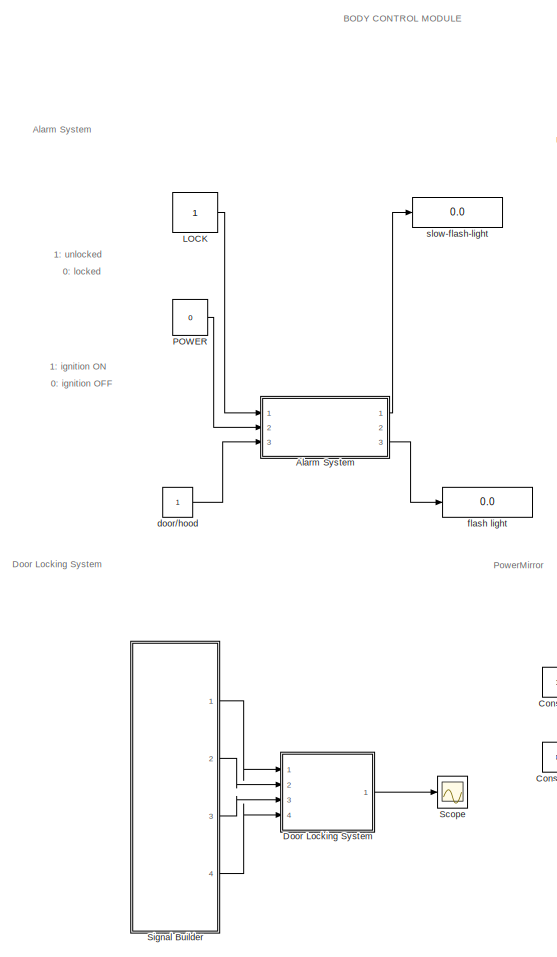
[diagram: root canvas - part 1/2, left side, full height]
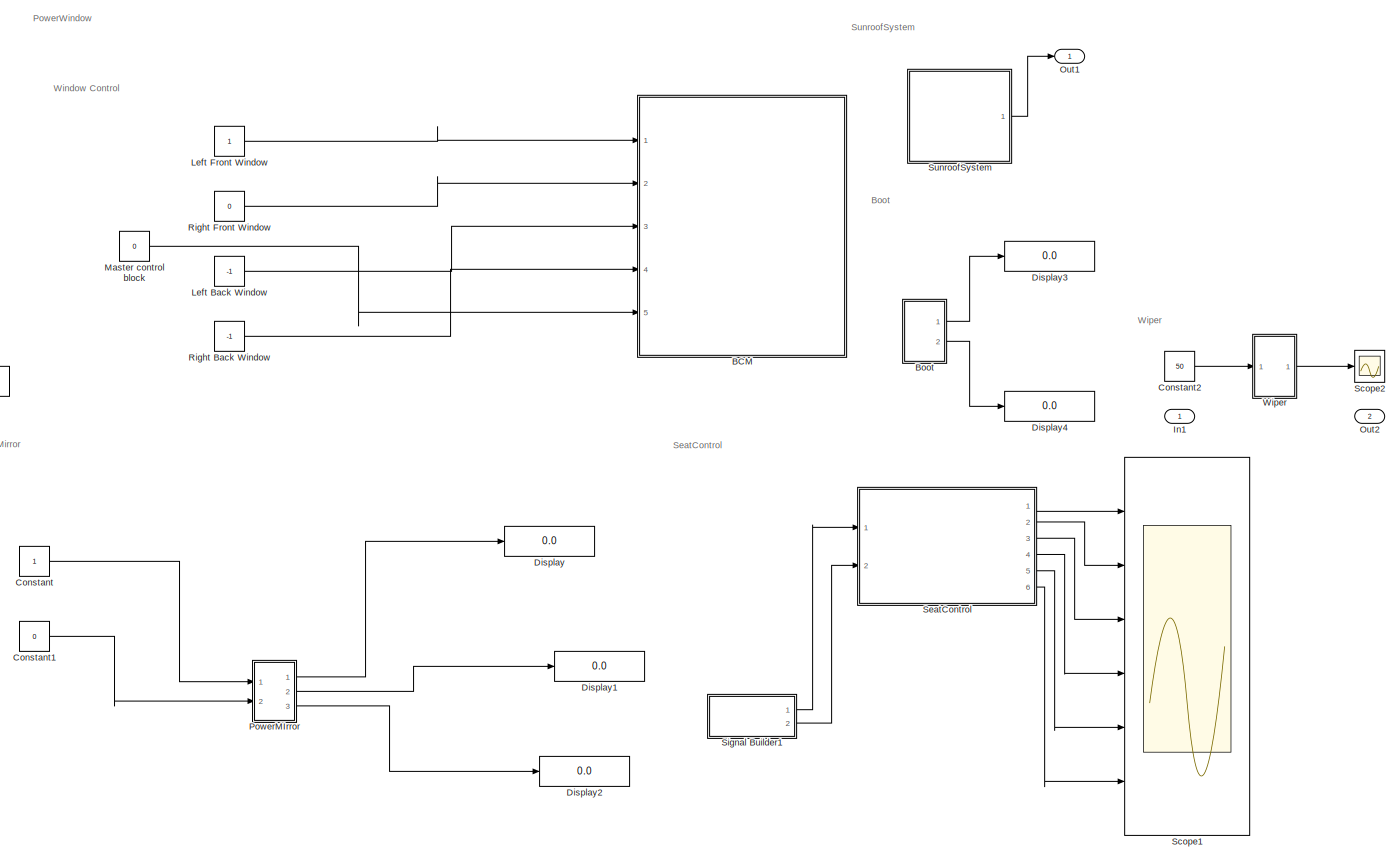
[diagram: root canvas - part 2/2, center side, full height]
MODEL slx_ff7060c86e51
KIND model
CONFIG AbsTol = auto
CONFIG EnableMultiTasking = off
CONFIG FixedStep = auto
CONFIG MaxStep = auto
CONFIG MinStep = auto
CONFIG RelTol = 1e-3
CONFIG SampleTimeConstraint = Unconstrained
CONFIG SolverName = VariableStepAuto
CONFIG StartTime = 0.0
CONFIG StopTime = 10.0
BLOCK [SubSystem]  Alarm System
  Ports = [3, 3]
  RequestExecContextInheritance = off
BLOCK [Outport]  Alarm System/Automatic locking
BLOCK [SubSystem]  Alarm System/Automatic locking system
  Ports = [2, 2]
  RequestExecContextInheritance = off
BLOCK [Logic]  Alarm System/Automatic locking system/AND
  AllPortsSameDT = off
  IconShape = distinctive
  OutDataTypeStr = boolean
  Ports = [2, 1]
BLOCK [Logic]  Alarm System/Automatic locking system/AND1
  AllPortsSameDT = off
  IconShape = distinctive
  OutDataTypeStr = boolean
  Ports = [2, 1]
BLOCK [Outport]  Alarm System/Automatic locking system/Automatic locking
BLOCK [Reference]  Alarm System/Automatic locking system/Compare To Constant  REF=simulink/Logic and Bit
Operations/Compare
To Constant
  Ports = [1, 1]
  SourceBlock = simulink/Logic and Bit\nOperations/Compare\nTo Constant
  SourceProductBaseCode = SL
  SourceType = Compare To Constant
BLOCK [Reference]  Alarm System/Automatic locking system/Counter  REF=dspswit3/Counter
  Ports = [1, 2]
  SourceBlock = dspswit3/Counter
  SourceProductBaseCode = DS
  SourceType = Counter
BLOCK [Inport]  Alarm System/Automatic locking system/In1
BLOCK [Inport]  Alarm System/Automatic locking system/In2
  Port = 2
BLOCK [Logic]  Alarm System/Automatic locking system/NOT
  AllPortsSameDT = off
  IconShape = distinctive
  Operator = NOT
  OutDataTypeStr = boolean
  Ports = [1, 1]
BLOCK [Logic]  Alarm System/Automatic locking system/NOT1
  AllPortsSameDT = off
  IconShape = distinctive
  Operator = NOT
  OutDataTypeStr = boolean
  Ports = [1, 1]
BLOCK [Outport]  Alarm System/Automatic locking system/Out2
  Port = 2
BLOCK [Scope]  Alarm System/Automatic locking system/Scope
  Floating = off
  NumInputPorts = 1
  Ports = [1]
  ScopeSpecificationString = Simulink.scopes.TimeScopeBlockCfg('CurrentConfiguration', extmgr.ConfigurationSet(extmgr.Configuration('Core','General UI',true),extmgr.Configuration('Core','Source UI',true),extmgr.Configuration('Sources','WiredSimulink',true),extmgr.Configuration('Visuals','Time Domain',true,'SerializedDisplays',{struct('MinYLimReal','28.75','MaxYLimReal','41.25','YLabelReal','','MinYLimMag','28.75','MaxYLimMag'...<+1311ch>
BLOCK [Inport]  Alarm System/In1
BLOCK [Inport]  Alarm System/In2
  Port = 2
BLOCK [Inport]  Alarm System/In3
  Port = 3
BLOCK [Outport]  Alarm System/Out2
  Port = 2
BLOCK [Outport]  Alarm System/Out3
  Port = 3
BLOCK [SubSystem]  Alarm System/Subsystem
  Ports = [2, 1]
  RequestExecContextInheritance = off
BLOCK [Logic]  Alarm System/Subsystem/AND
  AllPortsSameDT = off
  IconShape = distinctive
  OutDataTypeStr = boolean
  Ports = [2, 1]
BLOCK [Constant]  Alarm System/Subsystem/Constant1
BLOCK [Inport]  Alarm System/Subsystem/In1
BLOCK [Inport]  Alarm System/Subsystem/In2
  Port = 2
BLOCK [Logic]  Alarm System/Subsystem/NOT
  AllPortsSameDT = off
  IconShape = distinctive
  Operator = NOT
  OutDataTypeStr = boolean
  Ports = [1, 1]
BLOCK [Outport]  Alarm System/Subsystem/Out1
BLOCK [Switch]  Alarm System/Subsystem/Switch
  Criteria = u2 > Threshold
  InputSameDT = off
  SaturateOnIntegerOverflow = off
BLOCK [SubSystem] BCM
  Ports = [5]
  RequestExecContextInheritance = off
BLOCK [Inport] BCM/In1
BLOCK [Inport] BCM/In3
  Port = 2
BLOCK [Inport] BCM/In5
  Port = 3
BLOCK [Inport] BCM/In6
  Port = 5
BLOCK [Inport] BCM/In8
  Port = 4
BLOCK [SubSystem] BCM/Subsystem
  Ports = [4]
  RequestExecContextInheritance = off
BLOCK [Inport] BCM/Subsystem/In1
  Port = 2
BLOCK [Inport] BCM/Subsystem/In2
BLOCK [Inport] BCM/Subsystem/In3
  Port = 3
BLOCK [Inport] BCM/Subsystem/In4
  Port = 4
BLOCK [SubSystem] BCM/Subsystem/Left_B
  Ports = [1]
  RequestExecContextInheritance = off
BLOCK [Sum] BCM/Subsystem/Left_B/Add
  IconShape = rectangular
  Ports = [2, 1]
BLOCK [Constant] BCM/Subsystem/Left_B/Button not pressed
  Value = 0
BLOCK [Constant] BCM/Subsystem/Left_B/Constant1
BLOCK [Inport] BCM/Subsystem/Left_B/In1
BLOCK [Scope] BCM/Subsystem/Left_B/Motor_LF
  Floating = off
  NumInputPorts = 2
  Ports = [2]
  ScopeSpecificationString = Simulink.scopes.TimeScopeBlockCfg('CurrentConfiguration', extmgr.ConfigurationSet(extmgr.Configuration('Core','General UI',true),extmgr.Configuration('Core','Source UI',true),extmgr.Configuration('Sources','WiredSimulink',true,'DataLoggingVariableName','ScopeData3'),extmgr.Configuration('Visuals','Time Domain',true,'SerializedDisplays',{struct('MinYLimReal','-0.75','MaxYLimReal','6.75','YLabelReal...<+2109ch>
BLOCK [Reference] BCM/Subsystem/Left_B/RampSignal1  REF=simulink/Sources/Ramp
  Ports = [0, 1]
  SourceBlock = simulink/Sources/Ramp
  SourceProductBaseCode = SL
  SourceType = Ramp
BLOCK [Reference] BCM/Subsystem/Left_B/RampSignal2  REF=simulink/Sources/Ramp
  Ports = [0, 1]
  SourceBlock = simulink/Sources/Ramp
  SourceProductBaseCode = SL
  SourceType = Ramp
BLOCK [SubSystem] BCM/Subsystem/Left_B/Start
  ClipboardFcn = sigbuilder_block('clipboard');
  CloseFcn = sigbuilder_block('close');
  ContinueFcn = sigbuilder_block('continue');
  CopyFcn = sigbuilder_block('copy');
  DeleteFcn = sigbuilder_block('delete');
  LoadFcn = sigbuilder_block('load');
  MaskHideContents = on
  ModelCloseFcn = sigbuilder_block('modelClose');
  NameChangeFcn = sigbuilder_block('namechange');
  OpenFcn = sigbuilder_block('open',[437.6 199.2 550.4 400 ]);
  PauseFcn = sigbuilder_block('pause');
  Ports = [0, 1]
  PreSaveFcn = sigbuilder_block('preSave');
  RequestExecContextInheritance = off
  StartFcn = sigbuilder_block('start');
  StopFcn = sigbuilder_block('stop');
  Tag = STV Subsys
BLOCK [Demux] BCM/Subsystem/Left_B/Start/Demux
  DisplayOption = none
  Outputs = 1
  Ports = [1, 1]
  Tag = STV Demux
BLOCK [FromWorkspace] BCM/Subsystem/Left_B/Start/FromWs
  Tag = STV FromWs
  VariableName = tuvar
BLOCK [Outport] BCM/Subsystem/Left_B/Start/Signal 1
  Tag = STV Outport
BLOCK [Switch] BCM/Subsystem/Left_B/Window DOWN_LF
  InputSameDT = off
  SaturateOnIntegerOverflow = off
BLOCK [Switch] BCM/Subsystem/Left_B/Window UP_LF
  Criteria = u2 > Threshold
  InputSameDT = off
  SaturateOnIntegerOverflow = off
BLOCK [SubSystem] BCM/Subsystem/Left_F
  Ports = []
  RequestExecContextInheritance = off
BLOCK [Sum] BCM/Subsystem/Left_F/Add
  IconShape = rectangular
  Ports = [2, 1]
BLOCK [Constant] BCM/Subsystem/Left_F/Button not pressed
  Value = 0
BLOCK [Constant] BCM/Subsystem/Left_F/Constant1
BLOCK [Scope] BCM/Subsystem/Left_F/Motor_LF
  Floating = off
  NumInputPorts = 2
  Ports = [2]
  ScopeSpecificationString = Simulink.scopes.TimeScopeBlockCfg('CurrentConfiguration', extmgr.ConfigurationSet(extmgr.Configuration('Core','General UI',true),extmgr.Configuration('Core','Source UI',true),extmgr.Configuration('Sources','WiredSimulink',true,'DataLoggingVariableName','ScopeData1'),extmgr.Configuration('Visuals','Time Domain',true,'SerializedDisplays',{struct('MinYLimReal','-0.75','MaxYLimReal','6.75','YLabelReal...<+2091ch>
BLOCK [Reference] BCM/Subsystem/Left_F/RampSignal1  REF=simulink/Sources/Ramp
  Ports = [0, 1]
  SourceBlock = simulink/Sources/Ramp
  SourceProductBaseCode = SL
  SourceType = Ramp
BLOCK [Reference] BCM/Subsystem/Left_F/RampSignal2  REF=simulink/Sources/Ramp
  Ports = [0, 1]
  SourceBlock = simulink/Sources/Ramp
  SourceProductBaseCode = SL
  SourceType = Ramp
BLOCK [SubSystem] BCM/Subsystem/Left_F/Start
  ClipboardFcn = sigbuilder_block('clipboard');
  CloseFcn = sigbuilder_block('close');
  ContinueFcn = sigbuilder_block('continue');
  CopyFcn = sigbuilder_block('copy');
  DeleteFcn = sigbuilder_block('delete');
  LoadFcn = sigbuilder_block('load');
  MaskHideContents = on
  ModelCloseFcn = sigbuilder_block('modelClose');
  NameChangeFcn = sigbuilder_block('namechange');
  OpenFcn = sigbuilder_block('open',[437.6 199.2 550.4 400 ]);
  PauseFcn = sigbuilder_block('pause');
  Ports = [0, 1]
  PreSaveFcn = sigbuilder_block('preSave');
  RequestExecContextInheritance = off
  StartFcn = sigbuilder_block('start');
  StopFcn = sigbuilder_block('stop');
  Tag = STV Subsys
BLOCK [Demux] BCM/Subsystem/Left_F/Start/Demux
  DisplayOption = none
  Outputs = 1
  Ports = [1, 1]
  Tag = STV Demux
BLOCK [FromWorkspace] BCM/Subsystem/Left_F/Start/FromWs
  Tag = STV FromWs
  VariableName = tuvar
BLOCK [Outport] BCM/Subsystem/Left_F/Start/Signal 1
  Tag = STV Outport
BLOCK [Switch] BCM/Subsystem/Left_F/Window DOWN_LF
  InputSameDT = off
  SaturateOnIntegerOverflow = off
BLOCK [Switch] BCM/Subsystem/Left_F/Window UP_LF 
  Criteria = u2 > Threshold
  InputSameDT = off
  SaturateOnIntegerOverflow = off
BLOCK [SubSystem] BCM/Subsystem/Right_B
  Ports = []
  RequestExecContextInheritance = off
BLOCK [Sum] BCM/Subsystem/Right_B/Add
  IconShape = rectangular
  Ports = [2, 1]
BLOCK [Constant] BCM/Subsystem/Right_B/Button not pressed
  Value = 0
BLOCK [Constant] BCM/Subsystem/Right_B/Constant1
BLOCK [Scope] BCM/Subsystem/Right_B/Motor_RB
  Floating = off
  NumInputPorts = 2
  Ports = [2]
  ScopeSpecificationString = Simulink.scopes.TimeScopeBlockCfg('CurrentConfiguration', extmgr.ConfigurationSet(extmgr.Configuration('Core','General UI',true),extmgr.Configuration('Core','Source UI',true),extmgr.Configuration('Sources','WiredSimulink',true),extmgr.Configuration('Visuals','Time Domain',true,'SerializedDisplays',{struct('MinYLimReal','-0.75','MaxYLimReal','6.75','YLabelReal','','MinYLimMag','0.00000','MaxYLimMag...<+2028ch>
BLOCK [Reference] BCM/Subsystem/Right_B/Ramp signal  REF=simulink/Sources/Ramp
  Ports = [0, 1]
  SourceBlock = simulink/Sources/Ramp
  SourceProductBaseCode = SL
  SourceType = Ramp
BLOCK [Reference] BCM/Subsystem/Right_B/Ramp signal 1  REF=simulink/Sources/Ramp
  Ports = [0, 1]
  SourceBlock = simulink/Sources/Ramp
  SourceProductBaseCode = SL
  SourceType = Ramp
BLOCK [SubSystem] BCM/Subsystem/Right_B/Start
  ClipboardFcn = sigbuilder_block('clipboard');
  CloseFcn = sigbuilder_block('close');
  ContinueFcn = sigbuilder_block('continue');
  CopyFcn = sigbuilder_block('copy');
  DeleteFcn = sigbuilder_block('delete');
  LoadFcn = sigbuilder_block('load');
  MaskHideContents = on
  ModelCloseFcn = sigbuilder_block('modelClose');
  NameChangeFcn = sigbuilder_block('namechange');
  OpenFcn = sigbuilder_block('open',[437.6 199.2 550.4 400 ]);
  PauseFcn = sigbuilder_block('pause');
  Ports = [0, 1]
  PreSaveFcn = sigbuilder_block('preSave');
  RequestExecContextInheritance = off
  StartFcn = sigbuilder_block('start');
  StopFcn = sigbuilder_block('stop');
  Tag = STV Subsys
BLOCK [Demux] BCM/Subsystem/Right_B/Start/Demux
  DisplayOption = none
  Outputs = 1
  Ports = [1, 1]
  Tag = STV Demux
BLOCK [FromWorkspace] BCM/Subsystem/Right_B/Start/FromWs
  Tag = STV FromWs
  VariableName = tuvar
BLOCK [Outport] BCM/Subsystem/Right_B/Start/Signal 1
  Tag = STV Outport
BLOCK [Switch] BCM/Subsystem/Right_B/Window DOWN_RB
  InputSameDT = off
  SaturateOnIntegerOverflow = off
BLOCK [Switch] BCM/Subsystem/Right_B/Window UP_RB
  Criteria = u2 > Threshold
  InputSameDT = off
  SaturateOnIntegerOverflow = off
BLOCK [SubSystem] BCM/Subsystem/Right_F
  Ports = [1]
  RequestExecContextInheritance = off
BLOCK [Sum] BCM/Subsystem/Right_F/Add
  IconShape = rectangular
  Ports = [2, 1]
BLOCK [Constant] BCM/Subsystem/Right_F/Button not pressed
  Value = 0
BLOCK [Constant] BCM/Subsystem/Right_F/Constant1
BLOCK [Inport] BCM/Subsystem/Right_F/In1
BLOCK [Scope] BCM/Subsystem/Right_F/Motor_RF
  Floating = off
  NumInputPorts = 2
  Ports = [2]
  ScopeSpecificationString = Simulink.scopes.TimeScopeBlockCfg('CurrentConfiguration', extmgr.ConfigurationSet(extmgr.Configuration('Core','General UI',true),extmgr.Configuration('Core','Source UI',true),extmgr.Configuration('Sources','WiredSimulink',true,'DataLoggingVariableName','ScopeData2'),extmgr.Configuration('Visuals','Time Domain',true,'SerializedDisplays',{struct('MinYLimReal','-0.75','MaxYLimReal','6.75','YLabelReal...<+2117ch>
BLOCK [Reference] BCM/Subsystem/Right_F/RampSignal1  REF=simulink/Sources/Ramp
  Ports = [0, 1]
  SourceBlock = simulink/Sources/Ramp
  SourceProductBaseCode = SL
  SourceType = Ramp
BLOCK [Reference] BCM/Subsystem/Right_F/RampSignal2  REF=simulink/Sources/Ramp
  Ports = [0, 1]
  SourceBlock = simulink/Sources/Ramp
  SourceProductBaseCode = SL
  SourceType = Ramp
BLOCK [SubSystem] BCM/Subsystem/Right_F/Start
  ClipboardFcn = sigbuilder_block('clipboard');
  CloseFcn = sigbuilder_block('close');
  ContinueFcn = sigbuilder_block('continue');
  CopyFcn = sigbuilder_block('copy');
  DeleteFcn = sigbuilder_block('delete');
  LoadFcn = sigbuilder_block('load');
  MaskHideContents = on
  ModelCloseFcn = sigbuilder_block('modelClose');
  NameChangeFcn = sigbuilder_block('namechange');
  OpenFcn = sigbuilder_block('open',[437.6 199.2 550.4 400 ]);
  PauseFcn = sigbuilder_block('pause');
  Ports = [0, 1]
  PreSaveFcn = sigbuilder_block('preSave');
  RequestExecContextInheritance = off
  StartFcn = sigbuilder_block('start');
  StopFcn = sigbuilder_block('stop');
  Tag = STV Subsys
BLOCK [Demux] BCM/Subsystem/Right_F/Start/Demux
  DisplayOption = none
  Outputs = 1
  Ports = [1, 1]
  Tag = STV Demux
BLOCK [FromWorkspace] BCM/Subsystem/Right_F/Start/FromWs
  Tag = STV FromWs
  VariableName = tuvar
BLOCK [Outport] BCM/Subsystem/Right_F/Start/Signal 1
  Tag = STV Outport
BLOCK [Switch] BCM/Subsystem/Right_F/Window DOWN_RF
  InputSameDT = off
  SaturateOnIntegerOverflow = off
BLOCK [Switch] BCM/Subsystem/Right_F/Window UP_RF
  Criteria = u2 > Threshold
  InputSameDT = off
  SaturateOnIntegerOverflow = off
BLOCK [Switch] BCM/Switch
  Criteria = u2 > Threshold
  InputSameDT = off
  SaturateOnIntegerOverflow = off
BLOCK [Switch] BCM/Switch1
  Criteria = u2 > Threshold
  InputSameDT = off
  SaturateOnIntegerOverflow = off
BLOCK [Switch] BCM/Switch2
  Criteria = u2 > Threshold
  InputSameDT = off
  SaturateOnIntegerOverflow = off
BLOCK [Switch] BCM/Switch3
  Criteria = u2 > Threshold
  InputSameDT = off
  SaturateOnIntegerOverflow = off
BLOCK [SubSystem] Boot
  Ports = [0, 2]
  RequestExecContextInheritance = off
BLOCK [SubSystem] Boot/Boot Button Subsystem
  Ports = [1, 1]
  RequestExecContextInheritance = off
BLOCK [Constant] Boot/Boot Button Subsystem/Boot Button
BLOCK [Constant] Boot/Boot Button Subsystem/Constant3
BLOCK [Constant] Boot/Boot Button Subsystem/Constant4
BLOCK [Inport] Boot/Boot Button Subsystem/In1
BLOCK [Logic] Boot/Boot Button Subsystem/OR
  AllPortsSameDT = off
  IconShape = distinctive
  OutDataTypeStr = boolean
  Ports = [2, 1]
BLOCK [Outport] Boot/Boot Button Subsystem/Out1
BLOCK [Switch] Boot/Boot Button Subsystem/Switch
  InputSameDT = off
  NameLocation = left
  SaturateOnIntegerOverflow = off
BLOCK [SubSystem] Boot/Foot Sensor Subsystem
  Ports = [1, 1]
  RequestExecContextInheritance = off
BLOCK [Constant] Boot/Foot Sensor Subsystem/Constant
BLOCK [Constant] Boot/Foot Sensor Subsystem/Constant1
  NameLocation = left
BLOCK [Constant] Boot/Foot Sensor Subsystem/Foot Sensor
BLOCK [Inport] Boot/Foot Sensor Subsystem/In1
BLOCK [Logic] Boot/Foot Sensor Subsystem/OR1
  AllPortsSameDT = off
  IconShape = distinctive
  OutDataTypeStr = boolean
  Ports = [2, 1]
BLOCK [Outport] Boot/Foot Sensor Subsystem/Out1
BLOCK [Switch] Boot/Foot Sensor Subsystem/Switch1
  InputSameDT = off
  SaturateOnIntegerOverflow = off
  ZeroCross = off
BLOCK [Constant] Boot/Obstacle Detection
BLOCK [Outport] Boot/Out1
BLOCK [Outport] Boot/Out2
  Port = 2
BLOCK [Constant] Constant
BLOCK [Constant] Constant1
  Value = 0
BLOCK [Constant] Constant2
  Value = 50
BLOCK [Display] Display
  Decimation = 1
  Ports = [1]
BLOCK [Display] Display1
  Decimation = 1
  Ports = [1]
BLOCK [Display] Display2
  Decimation = 1
  Ports = [1]
BLOCK [Display] Display3
  Decimation = 1
  Ports = [1]
BLOCK [Display] Display4
  Decimation = 1
  Ports = [1]
BLOCK [SubSystem] Door Locking System
  Ports = [4, 1]
  RequestExecContextInheritance = off
BLOCK [Display] Door Locking System/Back-Left-Door-condition
  Decimation = 1
  Ports = [1]
BLOCK [Display] Door Locking System/Back-Right-Door-condition
  Decimation = 1
  Ports = [1]
BLOCK [SubSystem] Door Locking System/Door Locking System
  Ports = [4, 5]
  RequestExecContextInheritance = off
BLOCK [Inport] Door Locking System/Door Locking System/Lbd2
  Port = 3
BLOCK [Inport] Door Locking System/Door Locking System/Lfd1
BLOCK [Outport] Door Locking System/Door Locking System/Outport
  Port = 5
BLOCK [Inport] Door Locking System/Door Locking System/Rbd2
  Port = 4
BLOCK [Inport] Door Locking System/Door Locking System/Rfd1
  Port = 2
BLOCK [SubSystem] Door Locking System/Door Locking System/Subsystem
  Ports = [4, 5]
  RequestExecContextInheritance = off
BLOCK [SubSystem] Door Locking System/Door Locking System/Subsystem/Door lock control
  Ports = [4, 4]
  RequestExecContextInheritance = off
BLOCK [Inport] Door Locking System/Door Locking System/Subsystem/Door lock control/Lbd
  Port = 3
BLOCK [SubSystem] Door Locking System/Door Locking System/Subsystem/Door lock control/Left Back Door 1
  Ports = [1, 1]
  RequestExecContextInheritance = off
BLOCK [Constant] Door Locking System/Door Locking System/Subsystem/Door lock control/Left Back Door 1/Constant
  Value = 0
BLOCK [Inport] Door Locking System/Door Locking System/Subsystem/Door lock control/Left Back Door 1/In1
BLOCK [Reference] Door Locking System/Door Locking System/Subsystem/Door lock control/Left Back Door 1/Ramp  REF=simulink/Sources/Ramp
  Ports = [0, 1]
  SourceBlock = simulink/Sources/Ramp
  SourceProductBaseCode = SL
  SourceType = Ramp
BLOCK [Switch] Door Locking System/Door Locking System/Subsystem/Door lock control/Left Back Door 1/Switch
  Criteria = u2 > Threshold
  InputSameDT = off
  SaturateOnIntegerOverflow = off
BLOCK [Outport] Door Locking System/Door Locking System/Subsystem/Door lock control/Left Back Door 1/lbd_output
BLOCK [SubSystem] Door Locking System/Door Locking System/Subsystem/Door lock control/Left Front Door 
  Ports = [1, 1]
  RequestExecContextInheritance = off
BLOCK [Constant] Door Locking System/Door Locking System/Subsystem/Door lock control/Left Front Door /Constant
  Value = 0
BLOCK [Inport] Door Locking System/Door Locking System/Subsystem/Door lock control/Left Front Door /In1
BLOCK [Reference] Door Locking System/Door Locking System/Subsystem/Door lock control/Left Front Door /Ramp  REF=simulink/Sources/Ramp
  Ports = [0, 1]
  SourceBlock = simulink/Sources/Ramp
  SourceProductBaseCode = SL
  SourceType = Ramp
BLOCK [Switch] Door Locking System/Door Locking System/Subsystem/Door lock control/Left Front Door /S1
  Criteria = u2 > Threshold
  InputSameDT = off
  SaturateOnIntegerOverflow = off
BLOCK [Outport] Door Locking System/Door Locking System/Subsystem/Door lock control/Left Front Door /lfd output
BLOCK [Inport] Door Locking System/Door Locking System/Subsystem/Door lock control/Lfd
BLOCK [Inport] Door Locking System/Door Locking System/Subsystem/Door lock control/Rbd
  Port = 4
BLOCK [Inport] Door Locking System/Door Locking System/Subsystem/Door lock control/Rfd
  Port = 2
BLOCK [SubSystem] Door Locking System/Door Locking System/Subsystem/Door lock control/Right Back Door 1
  Ports = [1, 1]
  RequestExecContextInheritance = off
BLOCK [Constant] Door Locking System/Door Locking System/Subsystem/Door lock control/Right Back Door 1/Constant
  Value = 0
BLOCK [Inport] Door Locking System/Door Locking System/Subsystem/Door lock control/Right Back Door 1/Input
BLOCK [Reference] Door Locking System/Door Locking System/Subsystem/Door lock control/Right Back Door 1/Ramp_input  REF=simulink/Sources/Ramp
  Ports = [0, 1]
  SourceBlock = simulink/Sources/Ramp
  SourceProductBaseCode = SL
  SourceType = Ramp
BLOCK [Switch] Door Locking System/Door Locking System/Subsystem/Door lock control/Right Back Door 1/Switch
  Criteria = u2 > Threshold
  InputSameDT = off
  SaturateOnIntegerOverflow = off
BLOCK [Outport] Door Locking System/Door Locking System/Subsystem/Door lock control/Right Back Door 1/rbd_output
BLOCK [SubSystem] Door Locking System/Door Locking System/Subsystem/Door lock control/Right Front Door 
  Ports = [1, 1]
  RequestExecContextInheritance = off
BLOCK [Constant] Door Locking System/Door Locking System/Subsystem/Door lock control/Right Front Door /Constant
  Value = 0
BLOCK [Inport] Door Locking System/Door Locking System/Subsystem/Door lock control/Right Front Door /In1
BLOCK [Reference] Door Locking System/Door Locking System/Subsystem/Door lock control/Right Front Door /Ramp  REF=simulink/Sources/Ramp
  Ports = [0, 1]
  SourceBlock = simulink/Sources/Ramp
  SourceProductBaseCode = SL
  SourceType = Ramp
BLOCK [Switch] Door Locking System/Door Locking System/Subsystem/Door lock control/Right Front Door /Switch
  Criteria = u2 > Threshold
  InputSameDT = off
  SaturateOnIntegerOverflow = off
BLOCK [Outport] Door Locking System/Door Locking System/Subsystem/Door lock control/Right Front Door /rfd_output
BLOCK [Outport] Door Locking System/Door Locking System/Subsystem/Door lock control/lbd_output
  Port = 3
BLOCK [Outport] Door Locking System/Door Locking System/Subsystem/Door lock control/lfd_output
BLOCK [Outport] Door Locking System/Door Locking System/Subsystem/Door lock control/rbd_output
  Port = 4
BLOCK [Outport] Door Locking System/Door Locking System/Subsystem/Door lock control/rfd_output
  Port = 2
BLOCK [Inport] Door Locking System/Door Locking System/Subsystem/Lbd
  Port = 3
BLOCK [Inport] Door Locking System/Door Locking System/Subsystem/Lfd
BLOCK [Logic] Door Locking System/Door Locking System/Subsystem/OR
  AllPortsSameDT = off
  IconShape = distinctive
  Inputs = 4
  Operator = OR
  OutDataTypeStr = boolean
  Ports = [4, 1]
BLOCK [Outport] Door Locking System/Door Locking System/Subsystem/Outport
  Port = 3
BLOCK [Inport] Door Locking System/Door Locking System/Subsystem/Rbd
  Port = 4
BLOCK [Inport] Door Locking System/Door Locking System/Subsystem/Rfd
  Port = 2
BLOCK [Outport] Door Locking System/Door Locking System/Subsystem/lbd_output1
  Port = 4
BLOCK [Outport] Door Locking System/Door Locking System/Subsystem/lfd_output1
BLOCK [Outport] Door Locking System/Door Locking System/Subsystem/rbd_output1
  Port = 5
BLOCK [Outport] Door Locking System/Door Locking System/Subsystem/rfd_output1
  Port = 2
BLOCK [Outport] Door Locking System/Door Locking System/lbd_output1
  Port = 3
BLOCK [Outport] Door Locking System/Door Locking System/lfd_output1
BLOCK [Outport] Door Locking System/Door Locking System/rbd_output1
  Port = 4
BLOCK [Outport] Door Locking System/Door Locking System/rfd_output1
  Port = 2
BLOCK [Display] Door Locking System/Final Decision(1- Opened // 0 - Closed)
  Decimation = 1
  Ports = [1]
BLOCK [Display] Door Locking System/Front-Left-Door-condition
  Decimation = 1
  Ports = [1]
BLOCK [Display] Door Locking System/Front-Right-Door-condition
  Decimation = 1
  Ports = [1]
BLOCK [Inport] Door Locking System/Lbd2
  Port = 3
BLOCK [Inport] Door Locking System/Lfd1
BLOCK [Outport] Door Locking System/Outport
BLOCK [Inport] Door Locking System/Rbd2
  Port = 4
BLOCK [Inport] Door Locking System/Rfd1
  Port = 2
BLOCK [Inport] In1
BLOCK [Constant] LOCK
BLOCK [Constant] Left Back Window
  Value = -1
BLOCK [Constant] Left Front Window
BLOCK [Constant] Master control block
  Value = 0
BLOCK [Outport] Out1
BLOCK [Outport] Out2
  Port = 2
BLOCK [Constant] POWER
  Value = 0
BLOCK [SubSystem] PowerMIrror
  Ports = [2, 3]
  RequestExecContextInheritance = off
BLOCK [Inport] PowerMIrror/In1
BLOCK [Inport] PowerMIrror/In2
  Port = 2
BLOCK [Logic] PowerMIrror/OR
  AllPortsSameDT = off
  IconShape = distinctive
  Operator = OR
  OutDataTypeStr = boolean
  Ports = [2, 1]
BLOCK [Outport] PowerMIrror/Out1
BLOCK [Outport] PowerMIrror/Out2
  Port = 2
BLOCK [Outport] PowerMIrror/Out3
  Port = 3
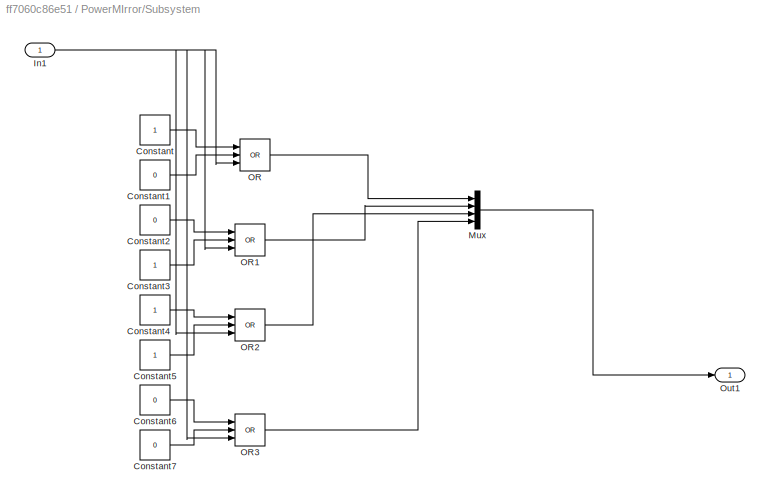
BLOCK [SubSystem] PowerMIrror/Subsystem
  PortSchema = {"entries":[{"content":{"sides":[{"content":{"connectorIds":[]},"type":"ConnectorPlacement.EquallySpacedRectSide","uuid":"24dbb584-65d0-4dd9-8920-8205f0b13d01"},{"content":{"connectorIds":["Out1"],"side":"RIGHT"},"type":"ConnectorPlacement.EquallySpacedRectSide","uuid":"108aa5af-9177-456b-a443-ec2af7dc3265"},{"content":{"connectorIds":["In1"],"side":"TOP"},"type":"ConnectorPlacement.EquallySpacedR...<+384ch>
  Ports = [1, 1]
  RequestExecContextInheritance = off
BLOCK [Constant] PowerMIrror/Subsystem/Constant
BLOCK [Constant] PowerMIrror/Subsystem/Constant1
  Value = 0
BLOCK [Constant] PowerMIrror/Subsystem/Constant2
  Value = 0
BLOCK [Constant] PowerMIrror/Subsystem/Constant3
BLOCK [Constant] PowerMIrror/Subsystem/Constant4
BLOCK [Constant] PowerMIrror/Subsystem/Constant5
BLOCK [Constant] PowerMIrror/Subsystem/Constant6
  Value = 0
BLOCK [Constant] PowerMIrror/Subsystem/Constant7
  Value = 0
BLOCK [Inport] PowerMIrror/Subsystem/In1
BLOCK [Mux] PowerMIrror/Subsystem/Mux
  DisplayOption = bar
  Ports = [4, 1]
BLOCK [Logic] PowerMIrror/Subsystem/OR
  AllPortsSameDT = off
  IconShape = distinctive
  Inputs = 3
  Operator = OR
  OutDataTypeStr = boolean
  Ports = [3, 1]
BLOCK [Logic] PowerMIrror/Subsystem/OR1
  AllPortsSameDT = off
  IconShape = distinctive
  Inputs = 3
  Operator = OR
  OutDataTypeStr = boolean
  Ports = [3, 1]
BLOCK [Logic] PowerMIrror/Subsystem/OR2
  AllPortsSameDT = off
  IconShape = distinctive
  Inputs = 3
  Operator = OR
  OutDataTypeStr = boolean
  Ports = [3, 1]
BLOCK [Logic] PowerMIrror/Subsystem/OR3
  AllPortsSameDT = off
  IconShape = distinctive
  Inputs = 3
  Operator = OR
  OutDataTypeStr = boolean
  Ports = [3, 1]
BLOCK [Outport] PowerMIrror/Subsystem/Out1
BLOCK [SubSystem] PowerMIrror/Subsystem1
  Ports = [1, 1]
  RequestExecContextInheritance = off
BLOCK [Constant] PowerMIrror/Subsystem1/Constant
BLOCK [Constant] PowerMIrror/Subsystem1/Constant1
  Value = 0
BLOCK [Constant] PowerMIrror/Subsystem1/Constant2
  Value = 0
BLOCK [Constant] PowerMIrror/Subsystem1/Constant3
BLOCK [Constant] PowerMIrror/Subsystem1/Constant4
BLOCK [Constant] PowerMIrror/Subsystem1/Constant5
BLOCK [Constant] PowerMIrror/Subsystem1/Constant6
  Value = 0
BLOCK [Constant] PowerMIrror/Subsystem1/Constant7
  Value = 0
BLOCK [Inport] PowerMIrror/Subsystem1/In1
BLOCK [Mux] PowerMIrror/Subsystem1/Mux
  DisplayOption = bar
  Ports = [4, 1]
BLOCK [Logic] PowerMIrror/Subsystem1/OR
  AllPortsSameDT = off
  IconShape = distinctive
  Inputs = 3
  Operator = OR
  OutDataTypeStr = boolean
  Ports = [3, 1]
BLOCK [Logic] PowerMIrror/Subsystem1/OR1
  AllPortsSameDT = off
  IconShape = distinctive
  Inputs = 3
  Operator = OR
  OutDataTypeStr = boolean
  Ports = [3, 1]
BLOCK [Logic] PowerMIrror/Subsystem1/OR2
  AllPortsSameDT = off
  IconShape = distinctive
  Inputs = 3
  Operator = OR
  OutDataTypeStr = boolean
  Ports = [3, 1]
BLOCK [Logic] PowerMIrror/Subsystem1/OR3
  AllPortsSameDT = off
  IconShape = distinctive
  Inputs = 3
  Operator = OR
  OutDataTypeStr = boolean
  Ports = [3, 1]
BLOCK [Outport] PowerMIrror/Subsystem1/Out1
BLOCK [Constant] Right Back Window
  Value = -1
BLOCK [Constant] Right Front Window
  Value = 0
BLOCK [Scope] Scope
  Floating = off
  NumInputPorts = 1
  Ports = [1]
  ScopeSpecificationString = Simulink.scopes.TimeScopeBlockCfg('CurrentConfiguration', extmgr.ConfigurationSet(extmgr.Configuration('Core','General UI',true),extmgr.Configuration('Core','Source UI',true),extmgr.Configuration('Sources','WiredSimulink',true,'DataLoggingVariableName','ScopeData1'),extmgr.Configuration('Visuals','Time Domain',true,'SerializedDisplays',{struct('MinYLimReal','-0.125','MaxYLimReal','1.125','YLabelRe...<+1368ch>
BLOCK [Scope] Scope1
  Floating = off
  NumInputPorts = 6
  Ports = [6]
  ScopeSpecificationString = Simulink.scopes.TimeScopeBlockCfg('CurrentConfiguration', extmgr.ConfigurationSet(extmgr.Configuration('Core','General UI',true),extmgr.Configuration('Core','Source UI',true),extmgr.Configuration('Sources','WiredSimulink',true,'DataLoggingVariableName','ScopeData1'),extmgr.Configuration('Visuals','Time Domain',true,'SerializedDisplays',{struct('MinYLimReal','-1.00000','MaxYLimReal','1.00000','YLab...<+4843ch>
BLOCK [Scope] Scope2
  Floating = off
  NumInputPorts = 1
  Ports = [1]
  ScopeSpecificationString = Simulink.scopes.TimeScopeBlockCfg('CurrentConfiguration', extmgr.ConfigurationSet(extmgr.Configuration('Core','General UI',true),extmgr.Configuration('Core','Source UI',true),extmgr.Configuration('Sources','WiredSimulink',true,'DataLoggingVariableName','ScopeData2'),extmgr.Configuration('Visuals','Time Domain',true,'SerializedDisplays',{struct('MinYLimReal','-0.25','MaxYLimReal','2.25','YLabelReal...<+1346ch>
BLOCK [SubSystem] SeatControl
  Ports = [2, 6]
  RequestExecContextInheritance = off
BLOCK [Reference] SeatControl/Compare To Constant2  REF=simulink/Logic and Bit
Operations/Compare
To Constant
  Ports = [1, 1]
  SourceBlock = simulink/Logic and Bit\nOperations/Compare\nTo Constant
  SourceProductBaseCode = SL
  SourceType = Compare To Constant
BLOCK [Reference] SeatControl/Condition  REF=simulink/Logic and Bit
Operations/Compare
To Constant
  Ports = [1, 1]
  SourceBlock = simulink/Logic and Bit\nOperations/Compare\nTo Constant
  SourceProductBaseCode = SL
  SourceType = Compare To Constant
BLOCK [Outport] SeatControl/Default
  Port = 6
BLOCK [Inport] SeatControl/Input
BLOCK [Inport] SeatControl/Input1
  Port = 2
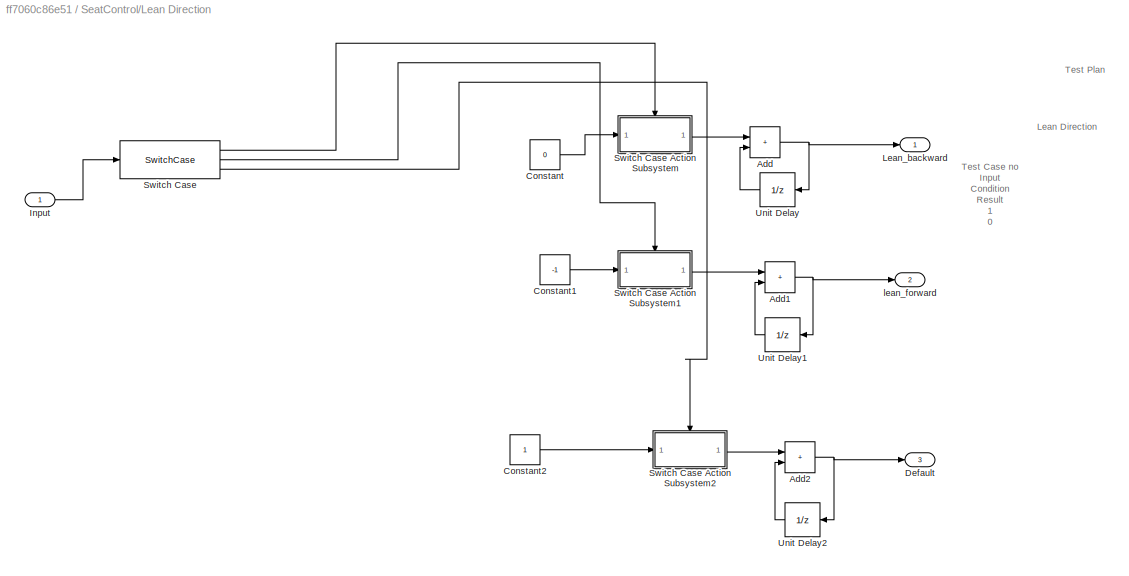
BLOCK [SubSystem] SeatControl/Lean  Direction
  Ports = [1, 3]
  RequestExecContextInheritance = off
BLOCK [Sum] SeatControl/Lean  Direction/Add
  IconShape = rectangular
  Ports = [2, 1]
BLOCK [Sum] SeatControl/Lean  Direction/Add1
  IconShape = rectangular
  Ports = [2, 1]
BLOCK [Sum] SeatControl/Lean  Direction/Add2
  IconShape = rectangular
  Ports = [2, 1]
BLOCK [Constant] SeatControl/Lean  Direction/Constant
  Value = 0
BLOCK [Constant] SeatControl/Lean  Direction/Constant1
  Value = -1
BLOCK [Constant] SeatControl/Lean  Direction/Constant2
BLOCK [Outport] SeatControl/Lean  Direction/Default
  Port = 3
BLOCK [Inport] SeatControl/Lean  Direction/Input
BLOCK [Outport] SeatControl/Lean  Direction/Lean_backward
BLOCK [SwitchCase] SeatControl/Lean  Direction/Switch Case
  CaseConditions = {0,-1}
  Ports = [1, 3]
BLOCK [SubSystem] SeatControl/Lean  Direction/Switch Case Action Subsystem
  Ports = [1, 1, 0, 0, 0, 0, 0, 1]
  RequestExecContextInheritance = off
  TreatAsAtomicUnit = on
BLOCK [ActionPort] SeatControl/Lean  Direction/Switch Case Action Subsystem/Action Port
BLOCK [Inport] SeatControl/Lean  Direction/Switch Case Action Subsystem/In1
BLOCK [Outport] SeatControl/Lean  Direction/Switch Case Action Subsystem/Out1
BLOCK [SubSystem] SeatControl/Lean  Direction/Switch Case Action Subsystem1
  Ports = [1, 1, 0, 0, 0, 0, 0, 1]
  RequestExecContextInheritance = off
  TreatAsAtomicUnit = on
BLOCK [ActionPort] SeatControl/Lean  Direction/Switch Case Action Subsystem1/Action Port
BLOCK [Inport] SeatControl/Lean  Direction/Switch Case Action Subsystem1/In1
BLOCK [Outport] SeatControl/Lean  Direction/Switch Case Action Subsystem1/Out1
BLOCK [SubSystem] SeatControl/Lean  Direction/Switch Case Action Subsystem2
  Ports = [1, 1, 0, 0, 0, 0, 0, 1]
  RequestExecContextInheritance = off
  TreatAsAtomicUnit = on
BLOCK [ActionPort] SeatControl/Lean  Direction/Switch Case Action Subsystem2/Action Port
BLOCK [Inport] SeatControl/Lean  Direction/Switch Case Action Subsystem2/In1
BLOCK [Outport] SeatControl/Lean  Direction/Switch Case Action Subsystem2/Out1
BLOCK [UnitDelay] SeatControl/Lean  Direction/Unit Delay
  HasFrameUpgradeWarning = on
  NameLocation = top
  SampleTime = -1
BLOCK [UnitDelay] SeatControl/Lean  Direction/Unit Delay1
  HasFrameUpgradeWarning = on
  NameLocation = top
  SampleTime = -1
BLOCK [UnitDelay] SeatControl/Lean  Direction/Unit Delay2
  HasFrameUpgradeWarning = on
  NameLocation = top
  SampleTime = -1
BLOCK [Outport] SeatControl/Lean  Direction/lean_forward
  Port = 2
BLOCK [Outport] SeatControl/Lean_backward
  Port = 4
BLOCK [Outport] SeatControl/Lean_forward
  Port = 5
BLOCK [SubSystem] SeatControl/Vertical Direction
  Ports = [1, 3]
  RequestExecContextInheritance = off
BLOCK [Sum] SeatControl/Vertical Direction/Add
  IconShape = rectangular
  Ports = [2, 1]
BLOCK [Sum] SeatControl/Vertical Direction/Add1
  IconShape = rectangular
  Ports = [2, 1]
BLOCK [Constant] SeatControl/Vertical Direction/Constant
  Value = 2
BLOCK [Constant] SeatControl/Vertical Direction/Constant1
  Value = 0
BLOCK [Constant] SeatControl/Vertical Direction/Constant2
BLOCK [Inport] SeatControl/Vertical Direction/Input
BLOCK [SwitchCase] SeatControl/Vertical Direction/Switch Case
  CaseConditions = {0,-1}
  Ports = [1, 3]
BLOCK [SubSystem] SeatControl/Vertical Direction/Switch Case Action Subsystem
  Ports = [1, 1, 0, 0, 0, 0, 0, 1]
  RequestExecContextInheritance = off
  TreatAsAtomicUnit = on
BLOCK [ActionPort] SeatControl/Vertical Direction/Switch Case Action Subsystem/Action Port
BLOCK [Inport] SeatControl/Vertical Direction/Switch Case Action Subsystem/In1
BLOCK [Outport] SeatControl/Vertical Direction/Switch Case Action Subsystem/Out1
BLOCK [SubSystem] SeatControl/Vertical Direction/Switch Case Action Subsystem1
  Ports = [1, 1, 0, 0, 0, 0, 0, 1]
  RequestExecContextInheritance = off
  TreatAsAtomicUnit = on
BLOCK [ActionPort] SeatControl/Vertical Direction/Switch Case Action Subsystem1/Action Port
BLOCK [Inport] SeatControl/Vertical Direction/Switch Case Action Subsystem1/In1
BLOCK [Outport] SeatControl/Vertical Direction/Switch Case Action Subsystem1/Out1
BLOCK [SubSystem] SeatControl/Vertical Direction/Switch Case Action Subsystem2
  Ports = [1, 1, 0, 0, 0, 0, 0, 1]
  RequestExecContextInheritance = off
  TreatAsAtomicUnit = on
BLOCK [ActionPort] SeatControl/Vertical Direction/Switch Case Action Subsystem2/Action Port
BLOCK [Inport] SeatControl/Vertical Direction/Switch Case Action Subsystem2/In1
BLOCK [Outport] SeatControl/Vertical Direction/Switch Case Action Subsystem2/default
BLOCK [UnitDelay] SeatControl/Vertical Direction/Unit Delay
  HasFrameUpgradeWarning = on
  NameLocation = top
  SampleTime = -1
BLOCK [UnitDelay] SeatControl/Vertical Direction/Unit Delay1
  HasFrameUpgradeWarning = on
  NameLocation = top
  SampleTime = -1
BLOCK [Outport] SeatControl/Vertical Direction/default
  Port = 3
BLOCK [Outport] SeatControl/Vertical Direction/downward_dir
  Port = 2
BLOCK [Outport] SeatControl/Vertical Direction/upward_dir
BLOCK [Outport] SeatControl/default
  Port = 3
BLOCK [Outport] SeatControl/downward_dir
  Port = 2
BLOCK [Outport] SeatControl/upward_dir
BLOCK [SubSystem] Signal Builder
  ClipboardFcn = sigbuilder_block('clipboard');
  CloseFcn = sigbuilder_block('close');
  ContinueFcn = sigbuilder_block('continue');
  CopyFcn = sigbuilder_block('copy');
  DeleteFcn = sigbuilder_block('delete');
  LoadFcn = sigbuilder_block('load');
  MaskHideContents = on
  ModelCloseFcn = sigbuilder_block('modelClose');
  NameChangeFcn = sigbuilder_block('namechange');
  OpenFcn = sigbuilder_block('open',[437.6 199.2 550.4 400 ]);
  PauseFcn = sigbuilder_block('pause');
  Ports = [0, 4]
  PreSaveFcn = sigbuilder_block('preSave');
  RequestExecContextInheritance = off
  StartFcn = sigbuilder_block('start');
  StopFcn = sigbuilder_block('stop');
  Tag = STV Subsys
BLOCK [Demux] Signal Builder/Demux
  DisplayOption = none
  Ports = [1, 4]
  Tag = STV Demux
BLOCK [FromWorkspace] Signal Builder/FromWs
  Tag = STV FromWs
  VariableName = tuvar
BLOCK [Outport] Signal Builder/Signal 1
  Tag = STV Outport
BLOCK [Outport] Signal Builder/Signal 2
  Port = 2
  Tag = STV Outport
BLOCK [Outport] Signal Builder/Signal 3
  Port = 3
  Tag = STV Outport
BLOCK [Outport] Signal Builder/Signal 4
  Port = 4
  Tag = STV Outport
BLOCK [SubSystem] Signal Builder1
  ClipboardFcn = sigbuilder_block('clipboard');
  CloseFcn = sigbuilder_block('close');
  ContinueFcn = sigbuilder_block('continue');
  CopyFcn = sigbuilder_block('copy');
  DeleteFcn = sigbuilder_block('delete');
  LoadFcn = sigbuilder_block('load');
  MaskHideContents = on
  ModelCloseFcn = sigbuilder_block('modelClose');
  NameChangeFcn = sigbuilder_block('namechange');
  OpenFcn = sigbuilder_block('open',[153.75 66.75 550.5 399.75 ]);
  PauseFcn = sigbuilder_block('pause');
  Ports = [0, 2]
  PreSaveFcn = sigbuilder_block('preSave');
  RequestExecContextInheritance = off
  StartFcn = sigbuilder_block('start');
  StopFcn = sigbuilder_block('stop');
  Tag = STV Subsys
BLOCK [Demux] Signal Builder1/Demux
  DisplayOption = none
  Outputs = 2
  Ports = [1, 2]
  Tag = STV Demux
BLOCK [FromWorkspace] Signal Builder1/FromWs
  Tag = STV FromWs
  VariableName = tuvar
BLOCK [Outport] Signal Builder1/Signal 2
  Tag = STV Outport
BLOCK [Outport] Signal Builder1/Signal 3
  Port = 2
  Tag = STV Outport
BLOCK [SubSystem] SunroofSystem
  Ports = [0, 1]
  RequestExecContextInheritance = off
BLOCK [Constant] SunroofSystem/Constant
  Value = 30
BLOCK [Constant] SunroofSystem/Constant2
  Value = 31.7483455882353
BLOCK [Outport] SunroofSystem/Out1
BLOCK [SliderBlock] SunroofSystem/Slider
  ScaleMax = 40
BLOCK [Switch] SunroofSystem/Switch
  Criteria = u2 > Threshold
  InputSameDT = off
  SaturateOnIntegerOverflow = off
  Threshold = 30
BLOCK [SubSystem] Wiper
  Ports = [1, 1]
  RequestExecContextInheritance = off
BLOCK [Inport] Wiper/In1
BLOCK [Merge] Wiper/Merge
  Inputs = 4
  Ports = [4, 1]
BLOCK [Outport] Wiper/Out1
BLOCK [SubSystem] Wiper/Signal Builder
  ClipboardFcn = sigbuilder_block('clipboard');
  CloseFcn = sigbuilder_block('close');
  ContinueFcn = sigbuilder_block('continue');
  CopyFcn = sigbuilder_block('copy');
  DeleteFcn = sigbuilder_block('delete');
  LoadFcn = sigbuilder_block('load');
  MaskHideContents = on
  ModelCloseFcn = sigbuilder_block('modelClose');
  NameChangeFcn = sigbuilder_block('namechange');
  OpenFcn = sigbuilder_block('open',[437.6 199.2 550.4 400 ]);
  PauseFcn = sigbuilder_block('pause');
  Ports = [0, 4]
  PreSaveFcn = sigbuilder_block('preSave');
  RequestExecContextInheritance = off
  StartFcn = sigbuilder_block('start');
  StopFcn = sigbuilder_block('stop');
  Tag = STV Subsys
BLOCK [Demux] Wiper/Signal Builder/Demux
  DisplayOption = none
  Ports = [1, 4]
  Tag = STV Demux
BLOCK [FromWorkspace] Wiper/Signal Builder/FromWs
  Tag = STV FromWs
  VariableName = tuvar
BLOCK [Outport] Wiper/Signal Builder/Signal 1
  Tag = STV Outport
BLOCK [Outport] Wiper/Signal Builder/Signal 2
  Port = 2
  Tag = STV Outport
BLOCK [Outport] Wiper/Signal Builder/Signal 3
  Port = 3
  Tag = STV Outport
BLOCK [Outport] Wiper/Signal Builder/Signal 4
  Port = 4
  Tag = STV Outport
BLOCK [SubSystem] Wiper/Switch Case Action Subsystem
  Ports = [1, 1, 0, 0, 0, 0, 0, 1]
  RequestExecContextInheritance = off
  TreatAsAtomicUnit = on
BLOCK [ActionPort] Wiper/Switch Case Action Subsystem/Action Port
BLOCK [Inport] Wiper/Switch Case Action Subsystem/In1
BLOCK [Outport] Wiper/Switch Case Action Subsystem/Out1
BLOCK [SubSystem] Wiper/Switch Case Action Subsystem1
  Ports = [1, 1, 0, 0, 0, 0, 0, 1]
  RequestExecContextInheritance = off
  TreatAsAtomicUnit = on
BLOCK [ActionPort] Wiper/Switch Case Action Subsystem1/Action Port
BLOCK [Inport] Wiper/Switch Case Action Subsystem1/In1
BLOCK [Outport] Wiper/Switch Case Action Subsystem1/Out1
BLOCK [SubSystem] Wiper/Switch Case Action Subsystem2
  Ports = [1, 1, 0, 0, 0, 0, 0, 1]
  RequestExecContextInheritance = off
  TreatAsAtomicUnit = on
BLOCK [ActionPort] Wiper/Switch Case Action Subsystem2/Action Port
BLOCK [Inport] Wiper/Switch Case Action Subsystem2/In1
BLOCK [Outport] Wiper/Switch Case Action Subsystem2/Out1
BLOCK [SubSystem] Wiper/Switch Case Action Subsystem3
  Ports = [1, 1, 0, 0, 0, 0, 0, 1]
  RequestExecContextInheritance = off
  TreatAsAtomicUnit = on
BLOCK [ActionPort] Wiper/Switch Case Action Subsystem3/Action Port
BLOCK [Inport] Wiper/Switch Case Action Subsystem3/In1
BLOCK [Outport] Wiper/Switch Case Action Subsystem3/Out1
BLOCK [If] Wiper/threshold_comparison
  ElseIfExpressions = u1<=30,u1<=50
  IfExpression = u1<=10
  Ports = [1, 4]
BLOCK [Constant] door//hood 
BLOCK [Display] flash light
  Decimation = 1
  Ports = [1]
BLOCK [Display] slow-flash-light
  Decimation = 1
  Ports = [1]
ANNOTATION (root): 0: ignition OFF
ANNOTATION (root): 0: locked
ANNOTATION (root): 1: ignition ON
ANNOTATION (root): 1: unlocked
ANNOTATION (root): BODY CONTROL MODULE
ANNOTATION (root): Alarm System
ANNOTATION (root): Boot
ANNOTATION (root): Door Locking System
ANNOTATION (root): PowerMirror
ANNOTATION (root): PowerWindow
ANNOTATION (root): SeatControl
ANNOTATION (root): SunroofSystem
ANNOTATION (root): Window Control
ANNOTATION (root): Wiper
ANNOTATION SeatControl: Requirements: * if the user input is '0' the vertical direction is selected * if user input '-1' the lean direction is selected
ANNOTATION SeatControl/Lean  Direction: Lean Direction
ANNOTATION SeatControl/Lean  Direction: Test Plan
ANNOTATION SeatControl/Lean  Direction: Test Case no Input Condition Result 1 0 lean backward direction Pass 2 1 Default Pass 3 -1 Lean in forward Direction Pass
ANNOTATION SeatControl/Vertical Direction: Test Plan
ANNOTATION SeatControl/Vertical Direction: Vertical Direction
ANNOTATION SeatControl/Vertical Direction: Test Case no Input Condition Result 1 0 move in upward direction Pass 2 1 Default Pass 3 -1 Move in Downward Direction Pass
ANNOTATION Wiper: low
LINE  Alarm System/Automatic locking system/AND1:1 ->  Alarm System/Automatic locking system/Automatic locking:1
LINE  Alarm System/Automatic locking system/AND:1 ->  Alarm System/Automatic locking system/AND1:1
LINE  Alarm System/Automatic locking system/Compare To Constant:1 ->  Alarm System/Automatic locking system/AND:2
NET  Alarm System/Automatic locking system/Counter:1 ->  Alarm System/Automatic locking system/Compare To Constant:1,  Alarm System/Automatic locking system/Scope:1
LINE  Alarm System/Automatic locking system/Counter:2 ->  Alarm System/Automatic locking system/Out2:1
NET  Alarm System/Automatic locking system/In1:1 ->  Alarm System/Automatic locking system/AND:1,  Alarm System/Automatic locking system/NOT:1
LINE  Alarm System/Automatic locking system/In2:1 ->  Alarm System/Automatic locking system/NOT1:1
LINE  Alarm System/Automatic locking system/NOT1:1 ->  Alarm System/Automatic locking system/AND1:2
LINE  Alarm System/Automatic locking system/NOT:1 ->  Alarm System/Automatic locking system/Counter:1
NET  Alarm System/Automatic locking system:1 ->  Alarm System/Automatic locking:1,  Alarm System/Subsystem:1
LINE  Alarm System/Automatic locking system:2 ->  Alarm System/Out2:1
LINE  Alarm System/In1:1 ->  Alarm System/Automatic locking system:1
LINE  Alarm System/In2:1 ->  Alarm System/Automatic locking system:2
LINE  Alarm System/In3:1 ->  Alarm System/Subsystem:2
LINE  Alarm System/Subsystem/AND:1 ->  Alarm System/Subsystem/Switch:2
NET  Alarm System/Subsystem/Constant1:1 ->  Alarm System/Subsystem/NOT:1,  Alarm System/Subsystem/Switch:1
LINE  Alarm System/Subsystem/In1:1 ->  Alarm System/Subsystem/AND:1
LINE  Alarm System/Subsystem/In2:1 ->  Alarm System/Subsystem/AND:2
LINE  Alarm System/Subsystem/NOT:1 ->  Alarm System/Subsystem/Switch:3
LINE  Alarm System/Subsystem/Switch:1 ->  Alarm System/Subsystem/Out1:1
LINE  Alarm System/Subsystem:1 ->  Alarm System/Out3:1
LINE  Alarm System:1 -> slow-flash-light:1
LINE  Alarm System:3 -> flash light:1
LINE BCM/In1:1 -> BCM/Switch:1
LINE BCM/In3:1 -> BCM/Switch1:1
LINE BCM/In5:1 -> BCM/Switch2:1
NET BCM/In6:1 -> BCM/Switch1:2, BCM/Switch2:2, BCM/Switch3:2, BCM/Switch:2
LINE BCM/In8:1 -> BCM/Switch3:1
LINE BCM/Subsystem/In1:1 -> BCM/Subsystem/Left_B:1
LINE BCM/Subsystem/In2:1 -> BCM/Subsystem/Right_F:1
LINE BCM/Subsystem/Left_B/Add:1 -> BCM/Subsystem/Left_B/Window DOWN_LF:2
NET BCM/Subsystem/Left_B/Button not pressed:1 -> BCM/Subsystem/Left_B/Window DOWN_LF:3, BCM/Subsystem/Left_B/Window UP_LF:3
LINE BCM/Subsystem/Left_B/Constant1:1 -> BCM/Subsystem/Left_B/Add:2
LINE BCM/Subsystem/Left_B/RampSignal1:1 -> BCM/Subsystem/Left_B/Window UP_LF:1
LINE BCM/Subsystem/Left_B/RampSignal2:1 -> BCM/Subsystem/Left_B/Window DOWN_LF:1
NET BCM/Subsystem/Left_B/Start:1 -> BCM/Subsystem/Left_B/Add:1, BCM/Subsystem/Left_B/Window UP_LF:2
LINE BCM/Subsystem/Left_B/Window DOWN_LF:1 -> BCM/Subsystem/Left_B/Motor_LF:2
LINE BCM/Subsystem/Left_B/Window UP_LF:1 -> BCM/Subsystem/Left_B/Motor_LF:1
LINE BCM/Subsystem/Left_F/Add:1 -> BCM/Subsystem/Left_F/Window DOWN_LF:2
NET BCM/Subsystem/Left_F/Button not pressed:1 -> BCM/Subsystem/Left_F/Window DOWN_LF:3, BCM/Subsystem/Left_F/Window UP_LF :3
LINE BCM/Subsystem/Left_F/Constant1:1 -> BCM/Subsystem/Left_F/Add:2
LINE BCM/Subsystem/Left_F/RampSignal1:1 -> BCM/Subsystem/Left_F/Window UP_LF :1
LINE BCM/Subsystem/Left_F/RampSignal2:1 -> BCM/Subsystem/Left_F/Window DOWN_LF:1
NET BCM/Subsystem/Left_F/Start:1 -> BCM/Subsystem/Left_F/Add:1, BCM/Subsystem/Left_F/Window UP_LF :2
LINE BCM/Subsystem/Left_F/Window DOWN_LF:1 -> BCM/Subsystem/Left_F/Motor_LF:2
LINE BCM/Subsystem/Left_F/Window UP_LF :1 -> BCM/Subsystem/Left_F/Motor_LF:1
LINE BCM/Subsystem/Right_B/Add:1 -> BCM/Subsystem/Right_B/Window DOWN_RB:2
NET BCM/Subsystem/Right_B/Button not pressed:1 -> BCM/Subsystem/Right_B/Window DOWN_RB:3, BCM/Subsystem/Right_B/Window UP_RB:3
LINE BCM/Subsystem/Right_B/Constant1:1 -> BCM/Subsystem/Right_B/Add:2
LINE BCM/Subsystem/Right_B/Ramp signal 1:1 -> BCM/Subsystem/Right_B/Window UP_RB:1
LINE BCM/Subsystem/Right_B/Ramp signal:1 -> BCM/Subsystem/Right_B/Window DOWN_RB:1
NET BCM/Subsystem/Right_B/Start:1 -> BCM/Subsystem/Right_B/Add:1, BCM/Subsystem/Right_B/Window UP_RB:2
LINE BCM/Subsystem/Right_B/Window DOWN_RB:1 -> BCM/Subsystem/Right_B/Motor_RB:2
LINE BCM/Subsystem/Right_B/Window UP_RB:1 -> BCM/Subsystem/Right_B/Motor_RB:1
LINE BCM/Subsystem/Right_F/Add:1 -> BCM/Subsystem/Right_F/Window DOWN_RF:2
NET BCM/Subsystem/Right_F/Button not pressed:1 -> BCM/Subsystem/Right_F/Window DOWN_RF:3, BCM/Subsystem/Right_F/Window UP_RF:3
LINE BCM/Subsystem/Right_F/Constant1:1 -> BCM/Subsystem/Right_F/Add:2
LINE BCM/Subsystem/Right_F/RampSignal1:1 -> BCM/Subsystem/Right_F/Window UP_RF:1
LINE BCM/Subsystem/Right_F/RampSignal2:1 -> BCM/Subsystem/Right_F/Window DOWN_RF:1
NET BCM/Subsystem/Right_F/Start:1 -> BCM/Subsystem/Right_F/Add:1, BCM/Subsystem/Right_F/Window UP_RF:2
LINE BCM/Subsystem/Right_F/Window DOWN_RF:1 -> BCM/Subsystem/Right_F/Motor_RF:2
LINE BCM/Subsystem/Right_F/Window UP_RF:1 -> BCM/Subsystem/Right_F/Motor_RF:1
LINE BCM/Switch1:1 -> BCM/Subsystem:2
LINE BCM/Switch2:1 -> BCM/Subsystem:3
LINE BCM/Switch3:1 -> BCM/Subsystem:4
LINE BCM/Switch:1 -> BCM/Subsystem:1
LINE Boot/Boot Button Subsystem/Boot Button:1 -> Boot/Boot Button Subsystem/OR:2
LINE Boot/Boot Button Subsystem/Constant3:1 -> Boot/Boot Button Subsystem/Switch:1
LINE Boot/Boot Button Subsystem/Constant4:1 -> Boot/Boot Button Subsystem/OR:1
LINE Boot/Boot Button Subsystem/In1:1 -> Boot/Boot Button Subsystem/Switch:3
LINE Boot/Boot Button Subsystem/OR:1 -> Boot/Boot Button Subsystem/Switch:2
LINE Boot/Boot Button Subsystem/Switch:1 -> Boot/Boot Button Subsystem/Out1:1
LINE Boot/Boot Button Subsystem:1 -> Boot/Out2:1
LINE Boot/Foot Sensor Subsystem/Constant1:1 -> Boot/Foot Sensor Subsystem/Switch1:1
LINE Boot/Foot Sensor Subsystem/Constant:1 -> Boot/Foot Sensor Subsystem/OR1:1
LINE Boot/Foot Sensor Subsystem/Foot Sensor:1 -> Boot/Foot Sensor Subsystem/OR1:2
LINE Boot/Foot Sensor Subsystem/In1:1 -> Boot/Foot Sensor Subsystem/Switch1:3
LINE Boot/Foot Sensor Subsystem/OR1:1 -> Boot/Foot Sensor Subsystem/Switch1:2
LINE Boot/Foot Sensor Subsystem/Switch1:1 -> Boot/Foot Sensor Subsystem/Out1:1
LINE Boot/Foot Sensor Subsystem:1 -> Boot/Out1:1
NET Boot/Obstacle Detection:1 -> Boot/Boot Button Subsystem:1, Boot/Foot Sensor Subsystem:1
LINE Boot:1 -> Display3:1
LINE Boot:2 -> Display4:1
LINE Constant1:1 -> PowerMIrror:2
LINE Constant2:1 -> Wiper:1
LINE Constant:1 -> PowerMIrror:1
LINE Door Locking System/Door Locking System/Lbd2:1 -> Door Locking System/Door Locking System/Subsystem:3
LINE Door Locking System/Door Locking System/Lfd1:1 -> Door Locking System/Door Locking System/Subsystem:1
LINE Door Locking System/Door Locking System/Rbd2:1 -> Door Locking System/Door Locking System/Subsystem:4
LINE Door Locking System/Door Locking System/Rfd1:1 -> Door Locking System/Door Locking System/Subsystem:2
LINE Door Locking System/Door Locking System/Subsystem/Door lock control/Lbd:1 -> Door Locking System/Door Locking System/Subsystem/Door lock control/Left Back Door 1:1
LINE Door Locking System/Door Locking System/Subsystem/Door lock control/Left Back Door 1/Constant:1 -> Door Locking System/Door Locking System/Subsystem/Door lock control/Left Back Door 1/Switch:3
LINE Door Locking System/Door Locking System/Subsystem/Door lock control/Left Back Door 1/In1:1 -> Door Locking System/Door Locking System/Subsystem/Door lock control/Left Back Door 1/Switch:2
LINE Door Locking System/Door Locking System/Subsystem/Door lock control/Left Back Door 1/Ramp:1 -> Door Locking System/Door Locking System/Subsystem/Door lock control/Left Back Door 1/Switch:1
LINE Door Locking System/Door Locking System/Subsystem/Door lock control/Left Back Door 1/Switch:1 -> Door Locking System/Door Locking System/Subsystem/Door lock control/Left Back Door 1/lbd_output:1
LINE Door Locking System/Door Locking System/Subsystem/Door lock control/Left Back Door 1:1 -> Door Locking System/Door Locking System/Subsystem/Door lock control/lbd_output:1
LINE Door Locking System/Door Locking System/Subsystem/Door lock control/Left Front Door /Constant:1 -> Door Locking System/Door Locking System/Subsystem/Door lock control/Left Front Door /S1:3
LINE Door Locking System/Door Locking System/Subsystem/Door lock control/Left Front Door /In1:1 -> Door Locking System/Door Locking System/Subsystem/Door lock control/Left Front Door /S1:2
LINE Door Locking System/Door Locking System/Subsystem/Door lock control/Left Front Door /Ramp:1 -> Door Locking System/Door Locking System/Subsystem/Door lock control/Left Front Door /S1:1
LINE Door Locking System/Door Locking System/Subsystem/Door lock control/Left Front Door /S1:1 -> Door Locking System/Door Locking System/Subsystem/Door lock control/Left Front Door /lfd output:1
LINE Door Locking System/Door Locking System/Subsystem/Door lock control/Left Front Door :1 -> Door Locking System/Door Locking System/Subsystem/Door lock control/lfd_output:1
LINE Door Locking System/Door Locking System/Subsystem/Door lock control/Lfd:1 -> Door Locking System/Door Locking System/Subsystem/Door lock control/Left Front Door :1
LINE Door Locking System/Door Locking System/Subsystem/Door lock control/Rbd:1 -> Door Locking System/Door Locking System/Subsystem/Door lock control/Right Back Door 1:1
LINE Door Locking System/Door Locking System/Subsystem/Door lock control/Rfd:1 -> Door Locking System/Door Locking System/Subsystem/Door lock control/Right Front Door :1
LINE Door Locking System/Door Locking System/Subsystem/Door lock control/Right Back Door 1/Constant:1 -> Door Locking System/Door Locking System/Subsystem/Door lock control/Right Back Door 1/Switch:3
LINE Door Locking System/Door Locking System/Subsystem/Door lock control/Right Back Door 1/Input:1 -> Door Locking System/Door Locking System/Subsystem/Door lock control/Right Back Door 1/Switch:2
LINE Door Locking System/Door Locking System/Subsystem/Door lock control/Right Back Door 1/Ramp_input:1 -> Door Locking System/Door Locking System/Subsystem/Door lock control/Right Back Door 1/Switch:1
LINE Door Locking System/Door Locking System/Subsystem/Door lock control/Right Back Door 1/Switch:1 -> Door Locking System/Door Locking System/Subsystem/Door lock control/Right Back Door 1/rbd_output:1
LINE Door Locking System/Door Locking System/Subsystem/Door lock control/Right Back Door 1:1 -> Door Locking System/Door Locking System/Subsystem/Door lock control/rbd_output:1
LINE Door Locking System/Door Locking System/Subsystem/Door lock control/Right Front Door /Constant:1 -> Door Locking System/Door Locking System/Subsystem/Door lock control/Right Front Door /Switch:3
LINE Door Locking System/Door Locking System/Subsystem/Door lock control/Right Front Door /In1:1 -> Door Locking System/Door Locking System/Subsystem/Door lock control/Right Front Door /Switch:2
LINE Door Locking System/Door Locking System/Subsystem/Door lock control/Right Front Door /Ramp:1 -> Door Locking System/Door Locking System/Subsystem/Door lock control/Right Front Door /Switch:1
LINE Door Locking System/Door Locking System/Subsystem/Door lock control/Right Front Door /Switch:1 -> Door Locking System/Door Locking System/Subsystem/Door lock control/Right Front Door /rfd_output:1
LINE Door Locking System/Door Locking System/Subsystem/Door lock control/Right Front Door :1 -> Door Locking System/Door Locking System/Subsystem/Door lock control/rfd_output:1
NET Door Locking System/Door Locking System/Subsystem/Door lock control:1 -> Door Locking System/Door Locking System/Subsystem/OR:1, Door Locking System/Door Locking System/Subsystem/lfd_output1:1
NET Door Locking System/Door Locking System/Subsystem/Door lock control:2 -> Door Locking System/Door Locking System/Subsystem/OR:2, Door Locking System/Door Locking System/Subsystem/rfd_output1:1
NET Door Locking System/Door Locking System/Subsystem/Door lock control:3 -> Door Locking System/Door Locking System/Subsystem/OR:3, Door Locking System/Door Locking System/Subsystem/lbd_output1:1
NET Door Locking System/Door Locking System/Subsystem/Door lock control:4 -> Door Locking System/Door Locking System/Subsystem/OR:4, Door Locking System/Door Locking System/Subsystem/rbd_output1:1
LINE Door Locking System/Door Locking System/Subsystem/Lbd:1 -> Door Locking System/Door Locking System/Subsystem/Door lock control:3
LINE Door Locking System/Door Locking System/Subsystem/Lfd:1 -> Door Locking System/Door Locking System/Subsystem/Door lock control:1
LINE Door Locking System/Door Locking System/Subsystem/OR:1 -> Door Locking System/Door Locking System/Subsystem/Outport:1
LINE Door Locking System/Door Locking System/Subsystem/Rbd:1 -> Door Locking System/Door Locking System/Subsystem/Door lock control:4
LINE Door Locking System/Door Locking System/Subsystem/Rfd:1 -> Door Locking System/Door Locking System/Subsystem/Door lock control:2
LINE Door Locking System/Door Locking System/Subsystem:1 -> Door Locking System/Door Locking System/lfd_output1:1
LINE Door Locking System/Door Locking System/Subsystem:2 -> Door Locking System/Door Locking System/rfd_output1:1
LINE Door Locking System/Door Locking System/Subsystem:3 -> Door Locking System/Door Locking System/Outport:1
LINE Door Locking System/Door Locking System/Subsystem:4 -> Door Locking System/Door Locking System/lbd_output1:1
LINE Door Locking System/Door Locking System/Subsystem:5 -> Door Locking System/Door Locking System/rbd_output1:1
LINE Door Locking System/Door Locking System:1 -> Door Locking System/Front-Left-Door-condition:1
LINE Door Locking System/Door Locking System:2 -> Door Locking System/Front-Right-Door-condition:1
LINE Door Locking System/Door Locking System:3 -> Door Locking System/Back-Left-Door-condition:1
LINE Door Locking System/Door Locking System:4 -> Door Locking System/Back-Right-Door-condition:1
NET Door Locking System/Door Locking System:5 -> Door Locking System/Final Decision(1- Opened // 0 - Closed):1, Door Locking System/Outport:1
LINE Door Locking System/Lbd2:1 -> Door Locking System/Door Locking System:3
LINE Door Locking System/Lfd1:1 -> Door Locking System/Door Locking System:1
LINE Door Locking System/Rbd2:1 -> Door Locking System/Door Locking System:4
LINE Door Locking System/Rfd1:1 -> Door Locking System/Door Locking System:2
LINE Door Locking System:1 -> Scope:1
LINE LOCK:1 ->  Alarm System:1
LINE Left Back Window:1 -> BCM:3
LINE Left Front Window:1 -> BCM:1
LINE Master control block:1 -> BCM:5
LINE POWER:1 ->  Alarm System:2
LINE PowerMIrror/In1:1 -> PowerMIrror/OR:1
LINE PowerMIrror/In2:1 -> PowerMIrror/OR:2
NET PowerMIrror/OR:1 -> PowerMIrror/Out1:1, PowerMIrror/Subsystem1:1, PowerMIrror/Subsystem:1
LINE PowerMIrror/Subsystem/Constant1:1 -> PowerMIrror/Subsystem/OR:2
LINE PowerMIrror/Subsystem/Constant2:1 -> PowerMIrror/Subsystem/OR1:1
LINE PowerMIrror/Subsystem/Constant3:1 -> PowerMIrror/Subsystem/OR1:2
LINE PowerMIrror/Subsystem/Constant4:1 -> PowerMIrror/Subsystem/OR2:1
LINE PowerMIrror/Subsystem/Constant5:1 -> PowerMIrror/Subsystem/OR2:2
LINE PowerMIrror/Subsystem/Constant6:1 -> PowerMIrror/Subsystem/OR3:1
LINE PowerMIrror/Subsystem/Constant7:1 -> PowerMIrror/Subsystem/OR3:2
LINE PowerMIrror/Subsystem/Constant:1 -> PowerMIrror/Subsystem/OR:1
NET PowerMIrror/Subsystem/In1:1 -> PowerMIrror/Subsystem/OR1:3, PowerMIrror/Subsystem/OR2:3, PowerMIrror/Subsystem/OR3:3, PowerMIrror/Subsystem/OR:3
LINE PowerMIrror/Subsystem/Mux:1 -> PowerMIrror/Subsystem/Out1:1
LINE PowerMIrror/Subsystem/OR1:1 -> PowerMIrror/Subsystem/Mux:2
LINE PowerMIrror/Subsystem/OR2:1 -> PowerMIrror/Subsystem/Mux:3
LINE PowerMIrror/Subsystem/OR3:1 -> PowerMIrror/Subsystem/Mux:4
LINE PowerMIrror/Subsystem/OR:1 -> PowerMIrror/Subsystem/Mux:1
LINE PowerMIrror/Subsystem1/Constant1:1 -> PowerMIrror/Subsystem1/OR:2
LINE PowerMIrror/Subsystem1/Constant2:1 -> PowerMIrror/Subsystem1/OR1:1
LINE PowerMIrror/Subsystem1/Constant3:1 -> PowerMIrror/Subsystem1/OR1:2
LINE PowerMIrror/Subsystem1/Constant4:1 -> PowerMIrror/Subsystem1/OR2:1
LINE PowerMIrror/Subsystem1/Constant5:1 -> PowerMIrror/Subsystem1/OR2:2
LINE PowerMIrror/Subsystem1/Constant6:1 -> PowerMIrror/Subsystem1/OR3:1
LINE PowerMIrror/Subsystem1/Constant7:1 -> PowerMIrror/Subsystem1/OR3:2
LINE PowerMIrror/Subsystem1/Constant:1 -> PowerMIrror/Subsystem1/OR:1
NET PowerMIrror/Subsystem1/In1:1 -> PowerMIrror/Subsystem1/OR1:3, PowerMIrror/Subsystem1/OR2:3, PowerMIrror/Subsystem1/OR3:3, PowerMIrror/Subsystem1/OR:3
LINE PowerMIrror/Subsystem1/Mux:1 -> PowerMIrror/Subsystem1/Out1:1
LINE PowerMIrror/Subsystem1/OR1:1 -> PowerMIrror/Subsystem1/Mux:2
LINE PowerMIrror/Subsystem1/OR2:1 -> PowerMIrror/Subsystem1/Mux:3
LINE PowerMIrror/Subsystem1/OR3:1 -> PowerMIrror/Subsystem1/Mux:4
LINE PowerMIrror/Subsystem1/OR:1 -> PowerMIrror/Subsystem1/Mux:1
LINE PowerMIrror/Subsystem1:1 -> PowerMIrror/Out3:1
LINE PowerMIrror/Subsystem:1 -> PowerMIrror/Out2:1
LINE PowerMIrror:1 -> Display:1
LINE PowerMIrror:2 -> Display1:1
LINE PowerMIrror:3 -> Display2:1
LINE Right Back Window:1 -> BCM:4
LINE Right Front Window:1 -> BCM:2
LINE SeatControl/Compare To Constant2:1 -> SeatControl/Lean  Direction:1
LINE SeatControl/Condition:1 -> SeatControl/Vertical Direction:1
LINE SeatControl/Input1:1 -> SeatControl/Compare To Constant2:1
LINE SeatControl/Input:1 -> SeatControl/Condition:1
NET SeatControl/Lean  Direction/Add1:1 -> SeatControl/Lean  Direction/Unit Delay1:1, SeatControl/Lean  Direction/lean_forward:1
NET SeatControl/Lean  Direction/Add2:1 -> SeatControl/Lean  Direction/Default:1, SeatControl/Lean  Direction/Unit Delay2:1
NET SeatControl/Lean  Direction/Add:1 -> SeatControl/Lean  Direction/Lean_backward:1, SeatControl/Lean  Direction/Unit Delay:1
LINE SeatControl/Lean  Direction/Constant1:1 -> SeatControl/Lean  Direction/Switch Case Action Subsystem1:1
LINE SeatControl/Lean  Direction/Constant2:1 -> SeatControl/Lean  Direction/Switch Case Action Subsystem2:1
LINE SeatControl/Lean  Direction/Constant:1 -> SeatControl/Lean  Direction/Switch Case Action Subsystem:1
LINE SeatControl/Lean  Direction/Input:1 -> SeatControl/Lean  Direction/Switch Case:1
LINE SeatControl/Lean  Direction/Switch Case Action Subsystem/In1:1 -> SeatControl/Lean  Direction/Switch Case Action Subsystem/Out1:1
LINE SeatControl/Lean  Direction/Switch Case Action Subsystem1/In1:1 -> SeatControl/Lean  Direction/Switch Case Action Subsystem1/Out1:1
LINE SeatControl/Lean  Direction/Switch Case Action Subsystem1:1 -> SeatControl/Lean  Direction/Add1:1
LINE SeatControl/Lean  Direction/Switch Case Action Subsystem2/In1:1 -> SeatControl/Lean  Direction/Switch Case Action Subsystem2/Out1:1
LINE SeatControl/Lean  Direction/Switch Case Action Subsystem2:1 -> SeatControl/Lean  Direction/Add2:1
LINE SeatControl/Lean  Direction/Switch Case Action Subsystem:1 -> SeatControl/Lean  Direction/Add:1
LINE SeatControl/Lean  Direction/Switch Case:1 -> SeatControl/Lean  Direction/Switch Case Action Subsystem:ifaction
LINE SeatControl/Lean  Direction/Switch Case:2 -> SeatControl/Lean  Direction/Switch Case Action Subsystem1:ifaction
LINE SeatControl/Lean  Direction/Switch Case:3 -> SeatControl/Lean  Direction/Switch Case Action Subsystem2:ifaction
LINE SeatControl/Lean  Direction/Unit Delay1:1 -> SeatControl/Lean  Direction/Add1:2
LINE SeatControl/Lean  Direction/Unit Delay2:1 -> SeatControl/Lean  Direction/Add2:2
LINE SeatControl/Lean  Direction/Unit Delay:1 -> SeatControl/Lean  Direction/Add:2
LINE SeatControl/Lean  Direction:1 -> SeatControl/Lean_backward:1
LINE SeatControl/Lean  Direction:2 -> SeatControl/Lean_forward:1
LINE SeatControl/Lean  Direction:3 -> SeatControl/Default:1
NET SeatControl/Vertical Direction/Add1:1 -> SeatControl/Vertical Direction/Unit Delay1:1, SeatControl/Vertical Direction/downward_dir:1
NET SeatControl/Vertical Direction/Add:1 -> SeatControl/Vertical Direction/Unit Delay:1, SeatControl/Vertical Direction/upward_dir:1
LINE SeatControl/Vertical Direction/Constant1:1 -> SeatControl/Vertical Direction/Switch Case Action Subsystem1:1
LINE SeatControl/Vertical Direction/Constant2:1 -> SeatControl/Vertical Direction/Switch Case Action Subsystem2:1
LINE SeatControl/Vertical Direction/Constant:1 -> SeatControl/Vertical Direction/Switch Case Action Subsystem:1
LINE SeatControl/Vertical Direction/Input:1 -> SeatControl/Vertical Direction/Switch Case:1
LINE SeatControl/Vertical Direction/Switch Case Action Subsystem/In1:1 -> SeatControl/Vertical Direction/Switch Case Action Subsystem/Out1:1
LINE SeatControl/Vertical Direction/Switch Case Action Subsystem1/In1:1 -> SeatControl/Vertical Direction/Switch Case Action Subsystem1/Out1:1
LINE SeatControl/Vertical Direction/Switch Case Action Subsystem1:1 -> SeatControl/Vertical Direction/Add1:1
LINE SeatControl/Vertical Direction/Switch Case Action Subsystem2/In1:1 -> SeatControl/Vertical Direction/Switch Case Action Subsystem2/default:1
LINE SeatControl/Vertical Direction/Switch Case Action Subsystem2:1 -> SeatControl/Vertical Direction/default:1
LINE SeatControl/Vertical Direction/Switch Case Action Subsystem:1 -> SeatControl/Vertical Direction/Add:1
LINE SeatControl/Vertical Direction/Switch Case:1 -> SeatControl/Vertical Direction/Switch Case Action Subsystem:ifaction
LINE SeatControl/Vertical Direction/Switch Case:2 -> SeatControl/Vertical Direction/Switch Case Action Subsystem1:ifaction
LINE SeatControl/Vertical Direction/Switch Case:3 -> SeatControl/Vertical Direction/Switch Case Action Subsystem2:ifaction
LINE SeatControl/Vertical Direction/Unit Delay1:1 -> SeatControl/Vertical Direction/Add1:2
LINE SeatControl/Vertical Direction/Unit Delay:1 -> SeatControl/Vertical Direction/Add:2
LINE SeatControl/Vertical Direction:1 -> SeatControl/upward_dir:1
LINE SeatControl/Vertical Direction:2 -> SeatControl/downward_dir:1
LINE SeatControl/Vertical Direction:3 -> SeatControl/default:1
LINE SeatControl:1 -> Scope1:1
LINE SeatControl:2 -> Scope1:2
LINE SeatControl:3 -> Scope1:3
LINE SeatControl:4 -> Scope1:4
LINE SeatControl:5 -> Scope1:5
LINE SeatControl:6 -> Scope1:6
LINE Signal Builder1:1 -> SeatControl:1
LINE Signal Builder1:2 -> SeatControl:2
LINE Signal Builder:1 -> Door Locking System:1
LINE Signal Builder:2 -> Door Locking System:2
LINE Signal Builder:3 -> Door Locking System:3
LINE Signal Builder:4 -> Door Locking System:4
NET SunroofSystem/Constant2:1 -> SunroofSystem/Switch:2, SunroofSystem/Switch:3
LINE SunroofSystem/Constant:1 -> SunroofSystem/Switch:1
LINE SunroofSystem/Switch:1 -> SunroofSystem/Out1:1
LINE SunroofSystem:1 -> Out1:1
LINE Wiper/In1:1 -> Wiper/threshold_comparison:1
LINE Wiper/Merge:1 -> Wiper/Out1:1
LINE Wiper/Signal Builder:1 -> Wiper/Switch Case Action Subsystem:1
LINE Wiper/Signal Builder:2 -> Wiper/Switch Case Action Subsystem1:1
LINE Wiper/Signal Builder:3 -> Wiper/Switch Case Action Subsystem2:1
LINE Wiper/Signal Builder:4 -> Wiper/Switch Case Action Subsystem3:1
LINE Wiper/Switch Case Action Subsystem/In1:1 -> Wiper/Switch Case Action Subsystem/Out1:1
LINE Wiper/Switch Case Action Subsystem1/In1:1 -> Wiper/Switch Case Action Subsystem1/Out1:1
LINE Wiper/Switch Case Action Subsystem1:1 -> Wiper/Merge:2
LINE Wiper/Switch Case Action Subsystem2/In1:1 -> Wiper/Switch Case Action Subsystem2/Out1:1
LINE Wiper/Switch Case Action Subsystem2:1 -> Wiper/Merge:3
LINE Wiper/Switch Case Action Subsystem3/In1:1 -> Wiper/Switch Case Action Subsystem3/Out1:1
LINE Wiper/Switch Case Action Subsystem3:1 -> Wiper/Merge:4
LINE Wiper/Switch Case Action Subsystem:1 -> Wiper/Merge:1
LINE Wiper/threshold_comparison:1 -> Wiper/Switch Case Action Subsystem:ifaction
LINE Wiper/threshold_comparison:2 -> Wiper/Switch Case Action Subsystem1:ifaction
LINE Wiper/threshold_comparison:3 -> Wiper/Switch Case Action Subsystem2:ifaction
LINE Wiper/threshold_comparison:4 -> Wiper/Switch Case Action Subsystem3:ifaction
LINE Wiper:1 -> Scope2:1
LINE door//hood :1 ->  Alarm System:3
note: NET lines group one-source signal fan-out (src -> all destinations, sorted); 1:1 wires keep LINE
